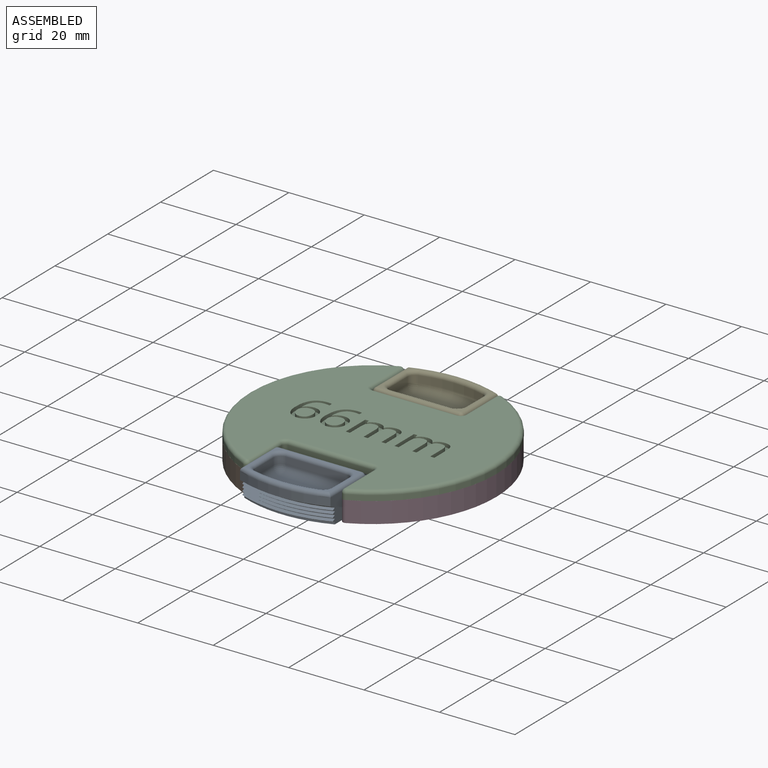
[diagram: assembled view]
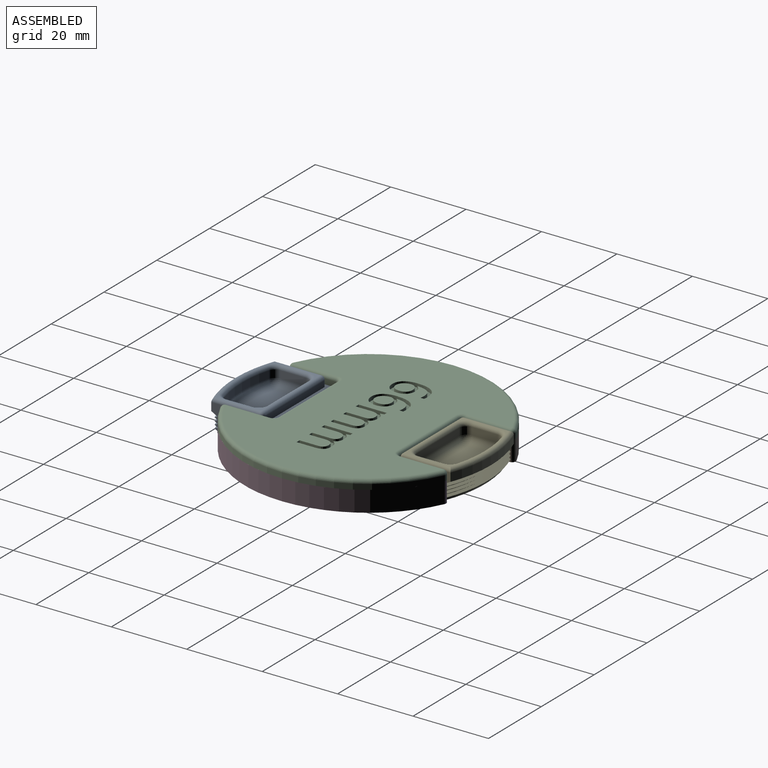
[diagram: assembled view, second angle]
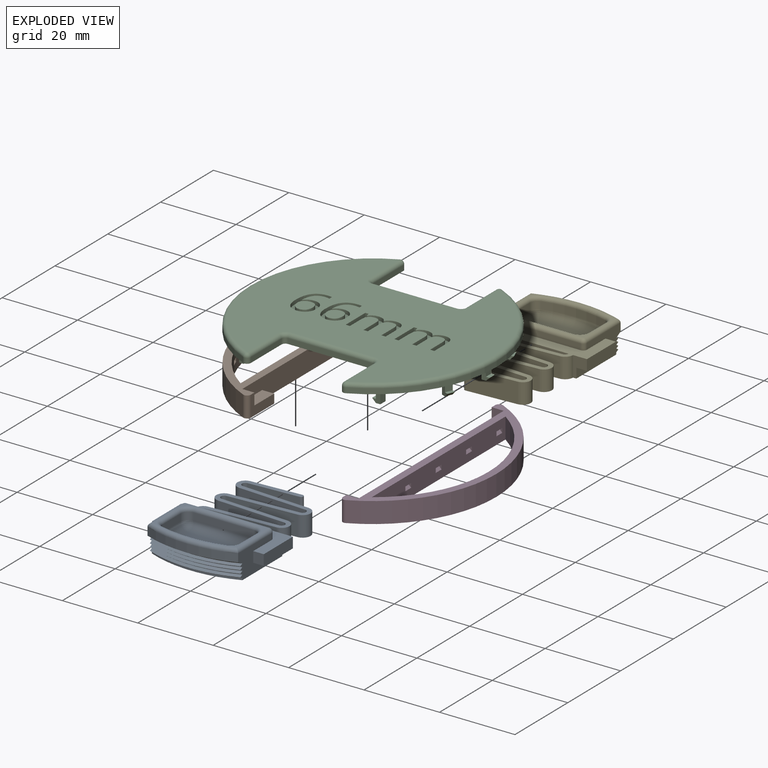
[diagram: exploded view]
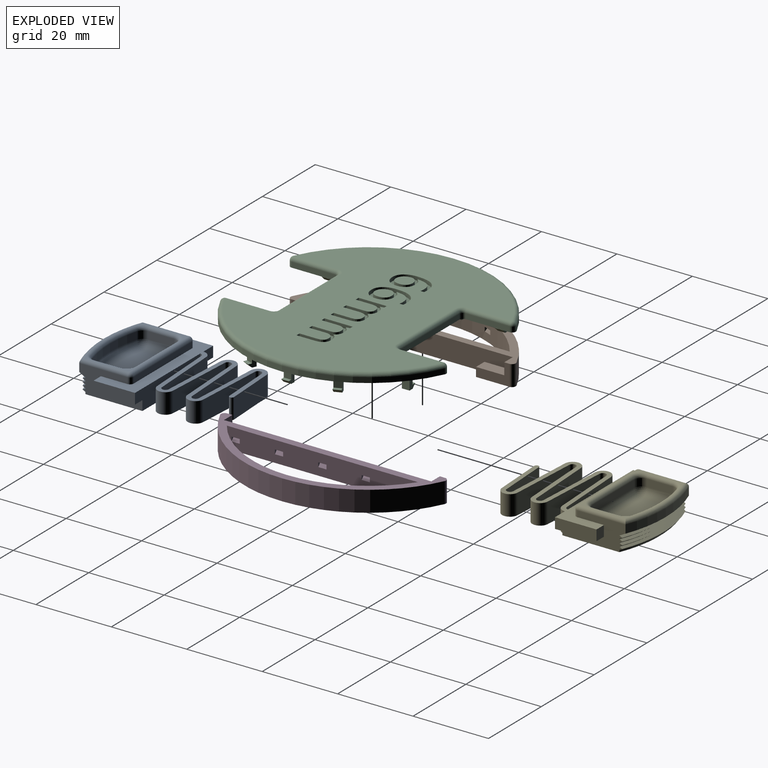
[diagram: exploded view, second angle]
ASSEMBLY  parts=5 mates=4
PART A: 82 faces, bbox 29.6x40.6x8 mm
  f0: plane 3x3mm, normal (0,0,1), area 1.9mm2, adj f75,f79,f80
  f1: plane 3x3mm, normal (0,0,1), area 1.9mm2, adj f73,f74,f79
  f2: plane 2.88x2.17mm, normal (0,0,1), area 0.9mm2, adj f76,f77,f80
  f3: plane 24.7x5.4mm, normal (0,1,0), area 126.1mm2, adj f5,f7,f25,f28,f29,f65
  f4: plane 2.88x2.17mm, normal (0,0,1), area 0.9mm2, adj f72,f73,f77
  f5: plane 16.76x7.01mm, normal (1,0,0), area 74mm2, adj f3,f7,f9,f10,f11,f12,f13,f14
  f6: plane 16.76x7.01mm, normal (-1,0,0), area 74mm2, adj f7,f9,f10,f11,f12,f13,f14,f15
  f7: plane 36.33x24mm, normal (0,0,-1), area 529.7mm2, adj f3,f5,f6,f14,f47,f48,f49,f50
  f8: plane 22x1.6mm, normal (0,1,0), area 35.2mm2, adj f25,f70,f71,f79
  f9: cylinder r=33mm len=24mm, axis (0,0,-1), area 52.4mm2, adj f5,f6,f13,f77
  f10: cylinder r=31.5mm len=24mm, axis (0,0,1), area 2.2mm2, adj f5,f6,f11,f22
  f11: cone r=31.5mm half-angle=60deg, axis (0,0,1), area 19.7mm2, adj f5,f6,f10,f12
  f12: cone r=31.5mm half-angle=60deg, axis (0,0,-1), area 19.7mm2, adj f5,f6,f11,f13
  f13: cone r=31.5mm half-angle=60deg, axis (0,0,1), area 42.6mm2, adj f5,f6,f9,f12
  f14: cylinder r=31.5mm len=24mm, axis (0,0,1), area 13mm2, adj f5,f6,f7,f15
  f15: cone r=31.5mm half-angle=60deg, axis (0,0,1), area 19.7mm2, adj f5,f6,f14,f16
  f16: cone r=31.5mm half-angle=60deg, axis (0,0,-1), area 19.7mm2, adj f5,f6,f15,f17
  f17: cylinder r=31.5mm len=24mm, axis (0,0,1), area 2.2mm2, adj f5,f6,f16,f18
  f18: cone r=31.5mm half-angle=60deg, axis (0,0,1), area 19.7mm2, adj f5,f6,f17,f19
  f19: cone r=31.5mm half-angle=60deg, axis (0,0,-1), area 19.7mm2, adj f5,f6,f18,f20
  f20: cylinder r=31.5mm len=24mm, axis (0,0,1), area 2.2mm2, adj f5,f6,f19,f21
  f21: cone r=31.5mm half-angle=60deg, axis (0,0,1), area 19.7mm2, adj f5,f6,f20,f22
  f22: cone r=31.5mm half-angle=60deg, axis (0,0,-1), area 19.7mm2, adj f5,f6,f10,f21
  f23: plane 11x2.8mm, normal (0,0,-1), area 30.8mm2, adj f6,f24,f26,f47
  f24: plane 2.8x2.8mm, normal (0,-1,0), area 7.8mm2, adj f6,f23,f25,f26
  f25: plane 29.83x29.6mm, normal (0,0,1), area 262.5mm2, adj f3,f5,f6,f8,f24,f26,f27,f29
  f26: plane 11x2.8mm, normal (-1,0,0), area 30.8mm2, adj f23,f24,f25,f47
  f27: plane 2.8x2.8mm, normal (0,-1,0), area 7.8mm2, adj f5,f25,f28,f29
  f28: plane 11x2.8mm, normal (0,0,-1), area 30.8mm2, adj f3,f5,f27,f29
  f29: plane 11x2.8mm, normal (1,0,0), area 30.8mm2, adj f3,f25,f27,f28
  f30: plane 6.87x2mm, normal (-1,0,0), area 13.7mm2, adj f37,f43,f46,f73
  f31: plane 16x2mm, normal (0,-1,0), area 32mm2, adj f40,f44,f46,f79
  f32: plane 6.87x2mm, normal (1,0,0), area 13.7mm2, adj f35,f39,f40,f80
  f33: cylinder r=31mm len=17.1mm, axis (0,0,1), area 34.7mm2, adj f35,f37,f38,f77
  f34: plane 16x8mm, normal (0,0,1), area 122mm2, adj f38,f39,f43,f44
  f35: cylinder r=2mm len=2mm, axis (0,0,1), area 5.2mm2, adj f32,f33,f36,f76
  f36: sphere r=2mm, area 5.2mm2, adj f35,f38,f39
  f37: cylinder r=2mm len=2mm, axis (0,0,1), area 5.2mm2, adj f30,f33,f41,f72
  f38: torus R=29mm, axis (0,0,1), area 53.2mm2, adj f33,f34,f36,f41
  f39: cylinder r=2mm len=6.87mm, axis (0,-1,0), area 21.6mm2, adj f32,f34,f36,f42
  f40: cylinder r=2mm len=2mm, axis (0,0,1), area 6.3mm2, adj f31,f32,f42,f75
  f41: sphere r=2mm, area 5.2mm2, adj f37,f38,f43
  f42: sphere r=2mm, area 6.3mm2, adj f39,f40,f44
  f43: cylinder r=2mm len=6.87mm, axis (0,1,0), area 21.6mm2, adj f30,f34,f41,f45
  f44: cylinder r=2mm len=16mm, axis (-1,0,0), area 50.3mm2, adj f31,f34,f42,f45
  f45: sphere r=2mm, area 6.3mm2, adj f43,f44,f46
  f46: cylinder r=2mm len=2mm, axis (0,0,-1), area 6.3mm2, adj f30,f31,f45,f74
  f47: plane 5.4x3.7mm, normal (0,1,0), area 12.7mm2, adj f6,f7,f23,f25,f26,f66
  f48: cylinder r=2.1mm len=5.4mm, axis (0,0,-1), area 34.4mm2, adj f7,f25,f49,f67
  f49: plane 18.17x5.4mm, normal (-0.06,1,0), area 98.2mm2, adj f7,f25,f48,f50
  f50: cylinder r=0.9mm len=5.4mm, axis (0,0,-1), area 14.7mm2, adj f7,f25,f49,f51
  f51: plane 18.17x5.4mm, normal (-0.06,-1,0), area 98.2mm2, adj f7,f25,f50,f52
  f52: cylinder r=2.1mm len=5.4mm, axis (0,0,-1), area 34.4mm2, adj f7,f25,f51,f53
  f53: plane 13.31x5.4mm, normal (-0.06,1,0), area 72mm2, adj f7,f25,f52,f54
  f54: cylinder r=0.6mm len=5.4mm, axis (0,0,-1), area 10.4mm2, adj f7,f25,f53,f55
  f55: plane 5.4x0mm, normal (1,0,0), area 0mm2, adj f7,f25,f54,f56
  f56: plane 13.27x5.4mm, normal (0.06,-1,0), area 71.8mm2, adj f7,f25,f55,f57
  f57: cylinder r=0.9mm len=5.4mm, axis (0,0,-1), area 14.7mm2, adj f7,f25,f56,f58
  f58: plane 18.17x5.4mm, normal (0.06,1,0), area 98.2mm2, adj f7,f25,f57,f59
  f59: cylinder r=2.1mm len=5.4mm, axis (0,0,-1), area 34.4mm2, adj f7,f25,f58,f60
  f60: plane 18.17x5.4mm, normal (0.06,-1,0), area 98.2mm2, adj f7,f25,f59,f61
  f61: cylinder r=0.9mm len=5.4mm, axis (0,0,-1), area 14.7mm2, adj f7,f25,f60,f62
  f62: plane 18.17x5.4mm, normal (0.06,1,0), area 98.2mm2, adj f7,f25,f61,f63
  f63: cylinder r=2.1mm len=5.4mm, axis (0,0,-1), area 34.4mm2, adj f7,f25,f62,f64
  f64: plane 18.17x5.4mm, normal (0.06,-1,0), area 98.2mm2, adj f7,f25,f63,f65
  f65: cylinder r=0.9mm len=5.4mm, axis (0,0,-1), area 7.4mm2, adj f3,f7,f25,f64
  f66: cylinder r=2.1mm len=5.4mm, axis (0,0,-1), area 17.2mm2, adj f7,f25,f47,f68
  f67: plane 18.17x5.4mm, normal (-0.06,-1,0), area 98.2mm2, adj f7,f25,f48,f69
  f68: plane 18.17x5.4mm, normal (-0.06,1,0), area 98.2mm2, adj f7,f25,f66,f69
  f69: cylinder r=0.9mm len=5.4mm, axis (0,0,-1), area 14.7mm2, adj f7,f25,f67,f68
  f70: cylinder r=1mm len=1.6mm, axis (0,0,-1), area 2.5mm2, adj f6,f8,f25,f81
  f71: cylinder r=1mm len=1.6mm, axis (0,0,1), area 2.5mm2, adj f5,f8,f25,f78
  f72: torus R=3mm, axis (0,0,1), area 4.8mm2, adj f4,f37,f73,f77
  f73: cylinder r=1mm len=12.74mm, axis (0,-1,0), area 30.3mm2, adj f1,f4,f5,f30,f72,f74,f77,f78
  f74: torus R=3mm, axis (0,0,1), area 5.8mm2, adj f1,f46,f73,f79
  f75: torus R=3mm, axis (0,0,1), area 5.8mm2, adj f0,f40,f79,f80
  f76: torus R=3mm, axis (0,0,1), area 4.8mm2, adj f2,f35,f77,f80
  f77: torus R=32mm, axis (0,0,1), area 64.6mm2, adj f2,f4,f9,f33,f72,f73,f76,f80
  f78: sphere r=1mm, area 1.6mm2, adj f71,f73,f79
  f79: cylinder r=1mm len=22mm, axis (1,0,0), area 59.7mm2, adj f0,f1,f8,f31,f74,f75,f78,f81
  f80: cylinder r=1mm len=12.74mm, axis (0,1,0), area 30.3mm2, adj f0,f2,f6,f32,f75,f76,f77,f81
  f81: sphere r=1mm, area 1.6mm2, adj f70,f79,f80
PART B: 48 faces, bbox 20.5x59.7x5.5 mm
  f0: plane 3.2x3.11mm, normal (0,-1,0), area 10mm2, adj f2,f3,f9,f11
  f1: plane 3.2x3.11mm, normal (0,1,0), area 10mm2, adj f2,f5,f10,f11
  f2: plane 55x5.51mm, normal (-1,0,0), area 267.1mm2, adj f0,f1,f6,f7,f8,f9,f10,f11
  f3: plane 8.85x5.51mm, normal (-1,0,0), area 25.5mm2, adj f0,f7,f8,f9,f11,f47
  f4: cylinder r=32.75mm len=59.52mm, axis (0,0,-1), area 411.5mm2, adj f7,f11,f46,f47
  f5: plane 8.85x5.51mm, normal (-1,0,0), area 25.5mm2, adj f1,f6,f7,f10,f11,f46
  f6: plane 3.2x2.4mm, normal (0,1,0), area 7.7mm2, adj f2,f5,f7,f10
  f7: plane 59.71x20.5mm, normal (0,0,-1), area 299.6mm2, adj f2,f3,f4,f5,f6,f8,f12,f13
  f8: plane 3.2x2.4mm, normal (0,-1,0), area 7.7mm2, adj f2,f3,f7,f9
  f9: plane 7.5x3.2mm, normal (0,0,1), area 24mm2, adj f0,f2,f3,f8
  f10: plane 7.5x3.2mm, normal (0,0,1), area 24mm2, adj f1,f2,f5,f6
  f11: plane 59.71x20.5mm, normal (0,0,1), area 251.6mm2, adj f0,f1,f2,f3,f4,f5,f12,f13
  f12: cylinder r=30.75mm len=50.64mm, axis (0,0,-1), area 320.4mm2, adj f7,f11,f13,f14,f15,f16,f17,f18
  f13: plane 50.64x5.51mm, normal (1,0,0), area 266.5mm2, adj f7,f11,f12,f26,f27,f28,f29,f30
  f14: plane 1.13x1.05mm, normal (0.38,0.92,0), area 0.6mm2, adj f12,f16,f17
  f15: plane 1.13x1.05mm, normal (-0.38,-0.92,0), area 0.6mm2, adj f12,f16,f17
  f16: plane 2.47x1.89mm, normal (0,0,-1), area 2.5mm2, adj f12,f14,f15,f17
  f17: plane 2.47x1.89mm, normal (-0.65,0.27,0.71), area 3.5mm2, adj f12,f14,f15,f16
  f18: plane 1.13x1.13mm, normal (0,1,0), area 0.6mm2, adj f12,f20,f21
  f19: plane 1.13x1.13mm, normal (0,-1,0), area 0.6mm2, adj f12,f20,f21
  f20: plane 2.2x1.13mm, normal (0,0,-1), area 2.5mm2, adj f12,f18,f19,f21
  f21: plane 2.2x1.13mm, normal (-0.71,0,0.71), area 3.5mm2, adj f12,f18,f19,f20
  f22: plane 1.13x1.05mm, normal (-0.38,0.92,0), area 0.6mm2, adj f12,f24,f25
  f23: plane 1.13x1.05mm, normal (0.38,-0.92,0), area 0.6mm2, adj f12,f24,f25
  f24: plane 2.47x1.89mm, normal (0,0,-1), area 2.5mm2, adj f12,f22,f23,f25
  f25: plane 2.47x1.89mm, normal (-0.65,-0.27,0.71), area 3.5mm2, adj f12,f22,f23,f24
  f26: plane 1.14x1.14mm, normal (0,-1,0), area 0.7mm2, adj f13,f28,f29
  f27: plane 1.14x1.14mm, normal (0,1,0), area 0.7mm2, adj f13,f28,f29
  f28: plane 2.2x1.14mm, normal (0.71,0,0.71), area 3.6mm2, adj f13,f26,f27,f29
  f29: plane 2.2x1.14mm, normal (0,0,-1), area 2.5mm2, adj f13,f26,f27,f28
  f30: plane 1.14x1.14mm, normal (0,-1,0), area 0.7mm2, adj f13,f32,f33
  f31: plane 1.14x1.14mm, normal (0,1,0), area 0.7mm2, adj f13,f32,f33
  f32: plane 2.2x1.14mm, normal (0.71,0,0.71), area 3.6mm2, adj f13,f30,f31,f33
  f33: plane 2.2x1.14mm, normal (0,0,-1), area 2.5mm2, adj f13,f30,f31,f32
  f34: plane 1.14x1.14mm, normal (0,-1,0), area 0.7mm2, adj f13,f36,f37
  f35: plane 1.14x1.14mm, normal (0,1,0), area 0.7mm2, adj f13,f36,f37
  f36: plane 2.2x1.14mm, normal (0.71,0,0.71), area 3.6mm2, adj f13,f34,f35,f37
  f37: plane 2.2x1.14mm, normal (0,0,-1), area 2.5mm2, adj f13,f34,f35,f36
  f38: plane 1.14x1.14mm, normal (0,-1,0), area 0.7mm2, adj f13,f40,f41
  f39: plane 1.14x1.14mm, normal (0,1,0), area 0.7mm2, adj f13,f40,f41
  f40: plane 2.2x1.14mm, normal (0.71,0,0.71), area 3.6mm2, adj f13,f38,f39,f41
  f41: plane 2.2x1.14mm, normal (0,0,-1), area 2.5mm2, adj f13,f38,f39,f40
  f42: plane 2.2x1.14mm, normal (0,0,-1), area 2.5mm2, adj f13,f43,f44,f45
  f43: plane 2.2x1.14mm, normal (0.71,0,0.71), area 3.6mm2, adj f13,f42,f44,f45
  f44: plane 1.14x1.14mm, normal (0,1,0), area 0.7mm2, adj f13,f42,f43
  f45: plane 1.14x1.14mm, normal (0,-1,0), area 0.7mm2, adj f13,f42,f43
  f46: cylinder r=1mm len=5.51mm, axis (0,0,-1), area 11mm2, adj f4,f5,f7,f11
  f47: cylinder r=1mm len=5.51mm, axis (0,0,-1), area 11mm2, adj f3,f4,f7,f11
PART C: 258 faces, bbox 70.9x64.5x5.9 mm
  f0: plane 63.5x57.75mm, normal (0,0,1), area 2205mm2, adj f130,f131,f132,f133,f134,f135,f136,f137
  f1: plane 65.5x59.75mm, normal (0,0,-1), area 2563mm2, adj f2,f3,f4,f5,f18,f19,f20,f21
  f2: plane 2.5x2mm, normal (-1,0,0), area 5mm2, adj f1,f6,f18,f72
  f3: plane 2.5x2mm, normal (-1,0,0), area 5mm2, adj f1,f7,f73,f78
  f4: plane 2.5x2mm, normal (-1,0,0), area 5mm2, adj f1,f8,f74,f75
  f5: plane 2.5x2mm, normal (-1,0,0), area 5mm2, adj f1,f9,f19,f76
  f6: plane 2x1mm, normal (0,0,1), area 2mm2, adj f2,f10,f18,f72
  f7: plane 2x1mm, normal (0,0,1), area 2mm2, adj f3,f11,f73,f78
  f8: plane 2x1mm, normal (0,0,1), area 2mm2, adj f4,f12,f74,f75
  f9: plane 2x1mm, normal (0,0,1), area 2mm2, adj f5,f13,f19,f76
  f10: plane 2x1mm, normal (-0.71,0,-0.71), area 2.8mm2, adj f6,f14,f18,f72
  f11: plane 2x1mm, normal (-0.71,0,-0.71), area 2.8mm2, adj f7,f15,f73,f78
  f12: plane 2x1mm, normal (-0.71,0,-0.71), area 2.8mm2, adj f8,f16,f74,f75
  f13: plane 2x1mm, normal (-0.71,0,-0.71), area 2.8mm2, adj f9,f17,f19,f76
  f14: plane 2x1.17mm, normal (0,0,-1), area 2.3mm2, adj f10,f18,f67,f72
  f15: plane 2x1.17mm, normal (0,0,-1), area 2.3mm2, adj f11,f68,f73,f78
  f16: plane 2x1.17mm, normal (0,0,-1), area 2.3mm2, adj f12,f71,f74,f75
  f17: plane 2x1.17mm, normal (0,0,-1), area 2.3mm2, adj f13,f19,f69,f76
  f18: plane 3.5x2.17mm, normal (0,-1,0), area 4.6mm2, adj f1,f2,f6,f10,f14,f67
  f19: plane 3.5x2.17mm, normal (0,1,0), area 4.6mm2, adj f1,f5,f9,f13,f17,f69
  f20: plane 2.5x2mm, normal (1,0,0), area 5mm2, adj f1,f34,f55,f60
  f21: plane 2.5x2mm, normal (1,0,0), area 5mm2, adj f1,f35,f56,f61
  f22: plane 2.5x2mm, normal (1,0,0), area 5mm2, adj f1,f36,f53,f57
  f23: plane 2.5x2mm, normal (1,0,0), area 5mm2, adj f1,f37,f54,f59
  f24: plane 2.5x2mm, normal (1,0,0), area 5mm2, adj f1,f38,f52,f58
  f25: plane 2x1.17mm, normal (0,0,-1), area 2.3mm2, adj f31,f53,f57,f66
  f26: plane 2x1.17mm, normal (0,0,-1), area 2.3mm2, adj f33,f52,f58,f62
  f27: plane 2x1.17mm, normal (0,0,-1), area 2.3mm2, adj f29,f55,f60,f64
  f28: plane 2x1.17mm, normal (0,0,-1), area 2.3mm2, adj f30,f56,f61,f65
  f29: plane 2x1mm, normal (0.71,0,-0.71), area 2.8mm2, adj f27,f34,f55,f60
  f30: plane 2x1mm, normal (0.71,0,-0.71), area 2.8mm2, adj f28,f35,f56,f61
  f31: plane 2x1mm, normal (0.71,0,-0.71), area 2.8mm2, adj f25,f36,f53,f57
  f32: plane 2x1mm, normal (0.71,0,-0.71), area 2.8mm2, adj f37,f51,f54,f59
  f33: plane 2x1mm, normal (0.71,0,-0.71), area 2.8mm2, adj f26,f38,f52,f58
  f34: plane 2x1mm, normal (0,0,1), area 2mm2, adj f20,f29,f55,f60
  f35: plane 2x1mm, normal (0,0,1), area 2mm2, adj f21,f30,f56,f61
  f36: plane 2x1mm, normal (0,0,1), area 2mm2, adj f22,f31,f53,f57
  f37: plane 2x1mm, normal (0,0,1), area 2mm2, adj f23,f32,f54,f59
  f38: plane 2x1mm, normal (0,0,1), area 2mm2, adj f24,f33,f52,f58
  f39: plane 11.63x1.39mm, normal (-1,0,0), area 16.2mm2, adj f1,f126,f127,f254
  f40: plane 22.4x1.39mm, normal (0,1,0), area 31.1mm2, adj f1,f127,f128,f257
  f41: plane 11.63x1.39mm, normal (1,0,0), area 16.2mm2, adj f1,f128,f129,f253
  f42: plane 11.63x1.39mm, normal (1,0,0), area 16.2mm2, adj f1,f122,f123,f245
  f43: plane 11.63x1.39mm, normal (-1,0,0), area 16.2mm2, adj f1,f124,f125,f246
  f44: plane 22.4x1.39mm, normal (0,-1,0), area 31.1mm2, adj f1,f122,f125,f242
  f45: cylinder r=32.75mm len=59.57mm, axis (0,0,-1), area 104mm2, adj f1,f124,f126,f250
  f46: cylinder r=32.75mm len=59.57mm, axis (0,0,-1), area 104mm2, adj f1,f123,f129,f249
  f47: plane 2.5x2mm, normal (-1,0,0), area 5mm2, adj f1,f48,f77,f79
  f48: plane 2x1mm, normal (0,0,1), area 2mm2, adj f47,f49,f77,f79
  f49: plane 2x1mm, normal (-0.71,0,-0.71), area 2.8mm2, adj f48,f50,f77,f79
  f50: plane 2x1.17mm, normal (0,0,-1), area 2.3mm2, adj f49,f70,f77,f79
  f51: plane 2x1.17mm, normal (0,0,-1), area 2.3mm2, adj f32,f54,f59,f63
  f52: plane 3.5x2.17mm, normal (0,-1,0), area 4.6mm2, adj f1,f24,f26,f33,f38,f62
  f53: plane 3.5x2.17mm, normal (0,1,0), area 4.6mm2, adj f1,f22,f25,f31,f36,f66
  f54: plane 3.5x2.17mm, normal (0,-1,0), area 4.6mm2, adj f1,f23,f32,f37,f51,f63
  f55: plane 3.5x2.17mm, normal (0,-1,0), area 4.6mm2, adj f1,f20,f27,f29,f34,f64
  f56: plane 3.5x2.17mm, normal (0,-1,0), area 4.6mm2, adj f1,f21,f28,f30,f35,f65
  f57: plane 3.5x2.17mm, normal (0,-1,0), area 4.6mm2, adj f1,f22,f25,f31,f36,f66
  f58: plane 3.5x2.17mm, normal (0,1,0), area 4.6mm2, adj f1,f24,f26,f33,f38,f62
  f59: plane 3.5x2.17mm, normal (0,1,0), area 4.6mm2, adj f1,f23,f32,f37,f51,f63
  f60: plane 3.5x2.17mm, normal (0,1,0), area 4.6mm2, adj f1,f20,f27,f29,f34,f64
  f61: plane 3.5x2.17mm, normal (0,1,0), area 4.6mm2, adj f1,f21,f28,f30,f35,f65
  f62: plane 3.5x2mm, normal (-1,0,0), area 7mm2, adj f1,f26,f52,f58
  f63: plane 3.5x2mm, normal (-1,0,0), area 7mm2, adj f1,f51,f54,f59
  f64: plane 3.5x2mm, normal (-1,0,0), area 7mm2, adj f1,f27,f55,f60
  f65: plane 3.5x2mm, normal (-1,0,0), area 7mm2, adj f1,f28,f56,f61
  f66: plane 3.5x2mm, normal (-1,0,0), area 7mm2, adj f1,f25,f53,f57
  f67: plane 3.5x2mm, normal (1,0,0), area 7mm2, adj f1,f14,f18,f72
  f68: plane 3.5x2mm, normal (1,0,0), area 7mm2, adj f1,f15,f73,f78
  f69: plane 3.5x2mm, normal (1,0,0), area 7mm2, adj f1,f17,f19,f76
  f70: plane 3.5x2mm, normal (1,0,0), area 7mm2, adj f1,f50,f77,f79
  f71: plane 3.5x2mm, normal (1,0,0), area 7mm2, adj f1,f16,f74,f75
  f72: plane 3.5x2.17mm, normal (0,1,0), area 4.6mm2, adj f1,f2,f6,f10,f14,f67
  f73: plane 3.5x2.17mm, normal (0,-1,0), area 4.6mm2, adj f1,f3,f7,f11,f15,f68
  f74: plane 3.5x2.17mm, normal (0,1,0), area 4.6mm2, adj f1,f4,f8,f12,f16,f71
  f75: plane 3.5x2.17mm, normal (0,-1,0), area 4.6mm2, adj f1,f4,f8,f12,f16,f71
  f76: plane 3.5x2.17mm, normal (0,-1,0), area 4.6mm2, adj f1,f5,f9,f13,f17,f69
  f77: plane 3.5x2.17mm, normal (0,-1,0), area 4.6mm2, adj f1,f47,f48,f49,f50,f70
  f78: plane 3.5x2.17mm, normal (0,1,0), area 4.6mm2, adj f1,f3,f7,f11,f15,f68
  f79: plane 3.5x2.17mm, normal (0,1,0), area 4.6mm2, adj f1,f47,f48,f49,f50,f70
  f80: plane 3.5x1.85mm, normal (0.92,0.38,0), area 7mm2, adj f1,f81,f85,f86
  f81: plane 2.31x1.87mm, normal (0,0,-1), area 2.4mm2, adj f80,f82,f85,f86
  f82: plane 2.23x1.69mm, normal (-0.65,-0.27,-0.71), area 2.8mm2, adj f81,f83,f85,f86
  f83: plane 2.23x1.69mm, normal (0,0,1), area 2mm2, adj f82,f84,f85,f86
  f84: plane 2.5x1.85mm, normal (-0.92,-0.38,0), area 5mm2, adj f1,f83,f85,f86
  f85: plane 3.5x2.03mm, normal (-0.38,0.92,0), area 4.7mm2, adj f1,f80,f81,f82,f83,f84
  f86: plane 3.5x2.03mm, normal (0.38,-0.92,0), area 4.7mm2, adj f1,f80,f81,f82,f83,f84
  f87: plane 3.5x2mm, normal (1,0,0), area 7mm2, adj f1,f88,f92,f93
  f88: plane 2x1.2mm, normal (0,0,-1), area 2.4mm2, adj f87,f89,f92,f93
  f89: plane 2x1mm, normal (-0.71,0,-0.71), area 2.8mm2, adj f88,f90,f92,f93
  f90: plane 2x1mm, normal (0,0,1), area 2mm2, adj f89,f91,f92,f93
  f91: plane 2.5x2mm, normal (-1,0,0), area 5mm2, adj f1,f90,f92,f93
  f92: plane 3.5x2.2mm, normal (0,1,0), area 4.7mm2, adj f1,f87,f88,f89,f90,f91
  f93: plane 3.5x2.2mm, normal (0,-1,0), area 4.7mm2, adj f1,f87,f88,f89,f90,f91
  f94: plane 3.5x1.85mm, normal (0.92,-0.38,0), area 7mm2, adj f1,f95,f99,f100
  f95: plane 2.31x1.87mm, normal (0,0,-1), area 2.4mm2, adj f94,f96,f99,f100
  f96: plane 2.23x1.69mm, normal (-0.65,0.27,-0.71), area 2.8mm2, adj f95,f97,f99,f100
  f97: plane 2.23x1.69mm, normal (0,0,1), area 2mm2, adj f96,f98,f99,f100
  f98: plane 2.5x1.85mm, normal (-0.92,0.38,0), area 5mm2, adj f1,f97,f99,f100
  f99: plane 3.5x2.03mm, normal (0.38,0.92,0), area 4.7mm2, adj f1,f94,f95,f96,f97,f98
  f100: plane 3.5x2.03mm, normal (-0.38,-0.92,0), area 4.7mm2, adj f1,f94,f95,f96,f97,f98
  f101: plane 3.5x1.85mm, normal (-0.92,-0.38,0), area 7mm2, adj f1,f102,f106,f107
  f102: plane 2.31x1.87mm, normal (0,0,-1), area 2.4mm2, adj f101,f103,f106,f107
  f103: plane 2.23x1.69mm, normal (0.65,0.27,-0.71), area 2.8mm2, adj f102,f104,f106,f107
  f104: plane 2.23x1.69mm, normal (0,0,1), area 2mm2, adj f103,f105,f106,f107
  f105: plane 2.5x1.85mm, normal (0.92,0.38,0), area 5mm2, adj f1,f104,f106,f107
  f106: plane 3.5x2.03mm, normal (0.38,-0.92,0), area 4.7mm2, adj f1,f101,f102,f103,f104,f105
  f107: plane 3.5x2.03mm, normal (-0.38,0.92,0), area 4.7mm2, adj f1,f101,f102,f103,f104,f105
  f108: plane 3.5x2mm, normal (-1,0,0), area 7mm2, adj f1,f109,f113,f114
  f109: plane 2x1.2mm, normal (0,0,-1), area 2.4mm2, adj f108,f110,f113,f114
  f110: plane 2x1mm, normal (0.71,0,-0.71), area 2.8mm2, adj f109,f111,f113,f114
  f111: plane 2x1mm, normal (0,0,1), area 2mm2, adj f110,f112,f113,f114
  f112: plane 2.5x2mm, normal (1,0,0), area 5mm2, adj f1,f111,f113,f114
  f113: plane 3.5x2.2mm, normal (0,-1,0), area 4.7mm2, adj f1,f108,f109,f110,f111,f112
  f114: plane 3.5x2.2mm, normal (0,1,0), area 4.7mm2, adj f1,f108,f109,f110,f111,f112
  f115: plane 3.5x1.85mm, normal (-0.92,0.38,0), area 7mm2, adj f1,f116,f120,f121
  f116: plane 2.31x1.87mm, normal (0,0,-1), area 2.4mm2, adj f115,f117,f120,f121
  f117: plane 2.23x1.69mm, normal (0.65,-0.27,-0.71), area 2.8mm2, adj f116,f118,f120,f121
  f118: plane 2.23x1.69mm, normal (0,0,1), area 2mm2, adj f117,f119,f120,f121
  f119: plane 2.5x1.85mm, normal (0.92,-0.38,0), area 5mm2, adj f1,f118,f120,f121
  f120: plane 3.5x2.03mm, normal (-0.38,-0.92,0), area 4.7mm2, adj f1,f115,f116,f117,f118,f119
  f121: plane 3.5x2.03mm, normal (0.38,0.92,0), area 4.7mm2, adj f1,f115,f116,f117,f118,f119
  f122: cylinder r=1mm len=1.39mm, axis (0,0,1), area 2.2mm2, adj f1,f42,f44,f243
  f123: cylinder r=1mm len=1.42mm, axis (0,0,-1), area 2.8mm2, adj f1,f42,f46,f247
  f124: cylinder r=1mm len=1.42mm, axis (0,0,-1), area 2.8mm2, adj f1,f43,f45,f248
  f125: cylinder r=1mm len=1.39mm, axis (0,0,-1), area 2.2mm2, adj f1,f43,f44,f244
  f126: cylinder r=1mm len=1.42mm, axis (0,0,-1), area 2.8mm2, adj f1,f39,f45,f252
  f127: cylinder r=1mm len=1.39mm, axis (0,0,1), area 2.2mm2, adj f1,f39,f40,f256
  f128: cylinder r=1mm len=1.39mm, axis (0,0,-1), area 2.2mm2, adj f1,f40,f41,f255
  f129: cylinder r=1mm len=1.42mm, axis (0,0,-1), area 2.8mm2, adj f1,f41,f46,f251
  f130: plane 4.84x1mm, normal (1,0,0), area 4.8mm2, adj f0,f131,f157,f158
  f131: plane 1.12x1mm, normal (0,1,0), area 1.1mm2, adj f0,f130,f132,f158
  f132: plane 4.85x1mm, normal (-1,0,0), area 4.8mm2, adj f0,f131,f133,f158
  f133: extruded ~2.07x1mm, area 2.2mm2, adj f0,f132,f134,f158
  f134: extruded ~1.89x1mm, area 2.1mm2, adj f0,f133,f135,f158
  f135: extruded ~1.44x1mm, area 1.5mm2, adj f0,f134,f136,f158
  f136: extruded ~1x0.96mm, area 1.4mm2, adj f0,f135,f137,f158
  f137: plane 1x0.05mm, normal (0,-1,0), area 0.1mm2, adj f0,f136,f138,f158
  f138: extruded ~2.28x1.26mm, area 2.8mm2, adj f0,f137,f139,f158
  f139: extruded ~1.3x1mm, area 1.3mm2, adj f0,f138,f140,f158
  f140: extruded ~1x0.9mm, area 1.3mm2, adj f0,f139,f141,f158
  f141: plane 1x0.05mm, normal (0,-1,0), area 0.1mm2, adj f0,f140,f142,f158
  f142: plane 1.02x1mm, normal (-0.98,-0.18,0), area 1mm2, adj f0,f141,f143,f158
  f143: plane 1x0.92mm, normal (0,-1,0), area 0.9mm2, adj f0,f142,f144,f158
  f144: plane 7.43x1mm, normal (1,0,0), area 7.4mm2, adj f0,f143,f145,f158
  f145: plane 1.13x1mm, normal (0,1,0), area 1.1mm2, adj f0,f144,f146,f158
  f146: plane 3.9x1mm, normal (-1,0,0), area 3.9mm2, adj f0,f145,f147,f158
  f147: extruded ~2.08x1mm, area 2.2mm2, adj f0,f146,f148,f158
  f148: extruded ~1.55x1mm, area 1.7mm2, adj f0,f147,f149,f158
  f149: extruded ~1.19x1mm, area 1.3mm2, adj f0,f148,f150,f158
  f150: extruded ~1.33x1mm, area 1.4mm2, adj f0,f149,f151,f158
  f151: plane 4.84x1mm, normal (1,0,0), area 4.8mm2, adj f0,f150,f152,f158
  f152: plane 1.13x1mm, normal (0,1,0), area 1.1mm2, adj f0,f151,f153,f158
  f153: plane 4.15x1mm, normal (-1,0,0), area 4.2mm2, adj f0,f152,f154,f158
  f154: extruded ~1.86x1mm, area 2mm2, adj f0,f153,f155,f158
  f155: extruded ~1.55x1mm, area 1.7mm2, adj f0,f154,f156,f158
  f156: extruded ~1.18x1mm, area 1.3mm2, adj f0,f155,f157,f158
  f157: extruded ~1.33x1mm, area 1.4mm2, adj f0,f130,f156,f158
  f158: plane 10.6x7.57mm, normal (0,0,1), area 31.3mm2, adj f130,f131,f132,f133,f134,f135,f136,f137
  f159: extruded ~1.5x1mm, area 1.7mm2, adj f160,f183,f184,f240
  f160: extruded ~1.14x1mm, area 1.2mm2, adj f159,f161,f184,f240
  f161: extruded ~1x0.96mm, area 1.2mm2, adj f160,f162,f184,f240
  f162: extruded ~1.3x1mm, area 1.3mm2, adj f161,f163,f184,f240
  f163: extruded ~1x0.92mm, area 1mm2, adj f162,f164,f184,f240
  f164: extruded ~1x0.81mm, area 1.1mm2, adj f163,f165,f184,f240
  f165: extruded ~1.12x1mm, area 1.2mm2, adj f164,f166,f184,f240
  f166: extruded ~1.48x1mm, area 1.6mm2, adj f165,f167,f184,f240
  f167: extruded ~1.55x1mm, area 1.7mm2, adj f166,f183,f184,f240
  f168: extruded ~4.37x1.14mm, area 4.6mm2, adj f0,f169,f182,f184
  f169: extruded ~3.22x1mm, area 3.4mm2, adj f0,f168,f170,f184
  f170: extruded ~2.44x1.16mm, area 2.8mm2, adj f0,f169,f171,f184
  f171: extruded ~2.28x1mm, area 2.5mm2, adj f0,f170,f172,f184
  f172: extruded ~2.43x1mm, area 2.6mm2, adj f0,f171,f173,f184
  f173: extruded ~2.19x1mm, area 2.4mm2, adj f0,f172,f174,f184
  f174: extruded ~2.11x1mm, area 2.3mm2, adj f0,f173,f175,f184
  f175: extruded ~2.36x1.17mm, area 2.8mm2, adj f0,f174,f176,f184
  f176: plane 1x0.08mm, normal (0,-1,0), area 0.1mm2, adj f0,f175,f177,f184
  f177: extruded ~3.12x1mm, area 3.3mm2, adj f0,f176,f178,f184
  f178: extruded ~2.44x1mm, area 2.7mm2, adj f0,f177,f179,f184
  f179: extruded ~1.19x1mm, area 1.2mm2, adj f0,f178,f180,f184
  f180: plane 1x0.97mm, normal (-1,0,0), area 1mm2, adj f0,f179,f181,f184
  f181: extruded ~1.21x1mm, area 1.2mm2, adj f0,f180,f182,f184
  f182: extruded ~3.36x1.45mm, area 3.8mm2, adj f0,f168,f181,f184
  f183: extruded ~1.75x1mm, area 1.9mm2, adj f159,f167,f184,f240
  f184: plane 10.19x6.47mm, normal (0,0,1), area 25.4mm2, adj f159,f160,f161,f162,f163,f164,f165,f166
  f185: extruded ~1.5x1mm, area 1.7mm2, adj f186,f209,f210,f241
  f186: extruded ~1.14x1mm, area 1.2mm2, adj f185,f187,f210,f241
  f187: extruded ~1x0.96mm, area 1.2mm2, adj f186,f188,f210,f241
  f188: extruded ~1.3x1mm, area 1.3mm2, adj f187,f189,f210,f241
  f189: extruded ~1x0.92mm, area 1mm2, adj f188,f190,f210,f241
  f190: extruded ~1x0.81mm, area 1.1mm2, adj f189,f191,f210,f241
  f191: extruded ~1.12x1mm, area 1.2mm2, adj f190,f192,f210,f241
  f192: extruded ~1.48x1mm, area 1.6mm2, adj f191,f193,f210,f241
  f193: extruded ~1.55x1mm, area 1.7mm2, adj f192,f209,f210,f241
  f194: extruded ~4.37x1.14mm, area 4.6mm2, adj f0,f195,f208,f210
  f195: extruded ~3.22x1mm, area 3.4mm2, adj f0,f194,f196,f210
  f196: extruded ~2.44x1.16mm, area 2.8mm2, adj f0,f195,f197,f210
  f197: extruded ~2.28x1mm, area 2.5mm2, adj f0,f196,f198,f210
  f198: extruded ~2.43x1mm, area 2.6mm2, adj f0,f197,f199,f210
  f199: extruded ~2.19x1mm, area 2.4mm2, adj f0,f198,f200,f210
  f200: extruded ~2.11x1mm, area 2.3mm2, adj f0,f199,f201,f210
  f201: extruded ~2.36x1.17mm, area 2.8mm2, adj f0,f200,f202,f210
  f202: plane 1x0.08mm, normal (0,-1,0), area 0.1mm2, adj f0,f201,f203,f210
  f203: extruded ~3.12x1mm, area 3.3mm2, adj f0,f202,f204,f210
  f204: extruded ~2.44x1mm, area 2.7mm2, adj f0,f203,f205,f210
  f205: extruded ~1.19x1mm, area 1.2mm2, adj f0,f204,f206,f210
  f206: plane 1x0.97mm, normal (-1,0,0), area 1mm2, adj f0,f205,f207,f210
  f207: extruded ~1.21x1mm, area 1.2mm2, adj f0,f206,f208,f210
  f208: extruded ~3.36x1.45mm, area 3.8mm2, adj f0,f194,f207,f210
  f209: extruded ~1.75x1mm, area 1.9mm2, adj f185,f193,f210,f241
  f210: plane 10.19x6.47mm, normal (0,0,1), area 25.4mm2, adj f185,f186,f187,f188,f189,f190,f191,f192
  f211: plane 4.84x1mm, normal (1,0,0), area 4.8mm2, adj f0,f212,f238,f239
  f212: plane 1.12x1mm, normal (0,1,0), area 1.1mm2, adj f0,f211,f213,f239
  f213: plane 4.85x1mm, normal (-1,0,0), area 4.8mm2, adj f0,f212,f214,f239
  f214: extruded ~2.07x1mm, area 2.2mm2, adj f0,f213,f215,f239
  f215: extruded ~1.89x1mm, area 2.1mm2, adj f0,f214,f216,f239
  f216: extruded ~1.44x1mm, area 1.5mm2, adj f0,f215,f217,f239
  f217: extruded ~1x0.96mm, area 1.4mm2, adj f0,f216,f218,f239
  f218: plane 1x0.05mm, normal (0,-1,0), area 0.1mm2, adj f0,f217,f219,f239
  f219: extruded ~2.28x1.26mm, area 2.8mm2, adj f0,f218,f220,f239
  f220: extruded ~1.3x1mm, area 1.3mm2, adj f0,f219,f221,f239
  f221: extruded ~1x0.9mm, area 1.3mm2, adj f0,f220,f222,f239
  f222: plane 1x0.05mm, normal (0,-1,0), area 0.1mm2, adj f0,f221,f223,f239
  f223: plane 1.02x1mm, normal (-0.98,-0.18,0), area 1mm2, adj f0,f222,f224,f239
  f224: plane 1x0.92mm, normal (0,-1,0), area 0.9mm2, adj f0,f223,f225,f239
  f225: plane 7.43x1mm, normal (1,0,0), area 7.4mm2, adj f0,f224,f226,f239
  f226: plane 1.13x1mm, normal (0,1,0), area 1.1mm2, adj f0,f225,f227,f239
  f227: plane 3.9x1mm, normal (-1,0,0), area 3.9mm2, adj f0,f226,f228,f239
  f228: extruded ~2.08x1mm, area 2.2mm2, adj f0,f227,f229,f239
  f229: extruded ~1.55x1mm, area 1.7mm2, adj f0,f228,f230,f239
  f230: extruded ~1.19x1mm, area 1.3mm2, adj f0,f229,f231,f239
  f231: extruded ~1.33x1mm, area 1.4mm2, adj f0,f230,f232,f239
  f232: plane 4.84x1mm, normal (1,0,0), area 4.8mm2, adj f0,f231,f233,f239
  f233: plane 1.13x1mm, normal (0,1,0), area 1.1mm2, adj f0,f232,f234,f239
  f234: plane 4.15x1mm, normal (-1,0,0), area 4.2mm2, adj f0,f233,f235,f239
  f235: extruded ~1.86x1mm, area 2mm2, adj f0,f234,f236,f239
  f236: extruded ~1.55x1mm, area 1.7mm2, adj f0,f235,f237,f239
  f237: extruded ~1.18x1mm, area 1.3mm2, adj f0,f236,f238,f239
  f238: extruded ~1.33x1mm, area 1.4mm2, adj f0,f211,f237,f239
  f239: plane 10.6x7.57mm, normal (0,0,1), area 31.3mm2, adj f211,f212,f213,f214,f215,f216,f217,f218
  f240: plane 4.47x4.2mm, normal (0,0,1), area 15.2mm2, adj f159,f160,f161,f162,f163,f164,f165,f166
  f241: plane 4.47x4.2mm, normal (0,0,1), area 15.2mm2, adj f185,f186,f187,f188,f189,f190,f191,f192
  f242: cylinder r=1mm len=22.4mm, axis (1,0,0), area 35.2mm2, adj f0,f44,f243,f244
  f243: torus R=2mm, axis (0,0,1), area 3.4mm2, adj f0,f122,f242,f245
  f244: torus R=2mm, axis (0,0,1), area 3.4mm2, adj f0,f125,f242,f246
  f245: cylinder r=1mm len=11.63mm, axis (0,1,0), area 18.3mm2, adj f0,f42,f243,f247
  f246: cylinder r=1mm len=11.63mm, axis (0,-1,0), area 18.3mm2, adj f0,f43,f244,f248
  f247: sphere r=1mm, area 2mm2, adj f123,f245,f249
  f248: sphere r=1mm, area 2mm2, adj f124,f246,f250
  f249: torus R=31.75mm, axis (0,0,1), area 116.2mm2, adj f0,f46,f247,f251
  f250: torus R=31.75mm, axis (0,0,1), area 116.2mm2, adj f0,f45,f248,f252
  f251: sphere r=1mm, area 2mm2, adj f129,f249,f253
  f252: sphere r=1mm, area 2mm2, adj f126,f250,f254
  f253: cylinder r=1mm len=11.63mm, axis (0,1,0), area 18.3mm2, adj f0,f41,f251,f255
  f254: cylinder r=1mm len=11.63mm, axis (0,-1,0), area 18.3mm2, adj f0,f39,f252,f256
  f255: torus R=2mm, axis (0,0,1), area 3.4mm2, adj f0,f128,f253,f257
  f256: torus R=2mm, axis (0,0,1), area 3.4mm2, adj f0,f127,f254,f257
  f257: cylinder r=1mm len=22.4mm, axis (-1,0,0), area 35.2mm2, adj f0,f40,f255,f256
PART D: same geometry as B
PART E: same geometry as A
PLACE A rot(axis=(0.1,0.94,0.33),0deg) t=(-7.99,-5.35,-47.74)mm
PLACE B rot(axis=(0,0,-1),180deg) t=(-84.2,-4.85,-47.69)mm
PLACE C t=(-84.25,-4.83,-47.79)mm fixed
PLACE D rot(axis=(0.1,0.94,0.33),0deg) t=(-84.3,-4.85,-47.69)mm
PLACE E rot(axis=(0,0,-1),180deg) t=(-160.5,-7.38,-47.74)mm
MATE slider C.f123 <-> B.f47  axis (0,0,-1) through (-97.45,-33.7,-42.18)mm
MATE slider A.f27 <-> D.f1  axis (0,-1,0) through (-70.85,-32.35,-43.74)mm
MATE slider D.f46 <-> C.f124  axis (0,0,1) through (-71.05,-33.7,-42.18)mm
MATE slider E.f27 <-> D.f0  axis (0,1,0) through (-97.65,19.62,-43.74)mm
